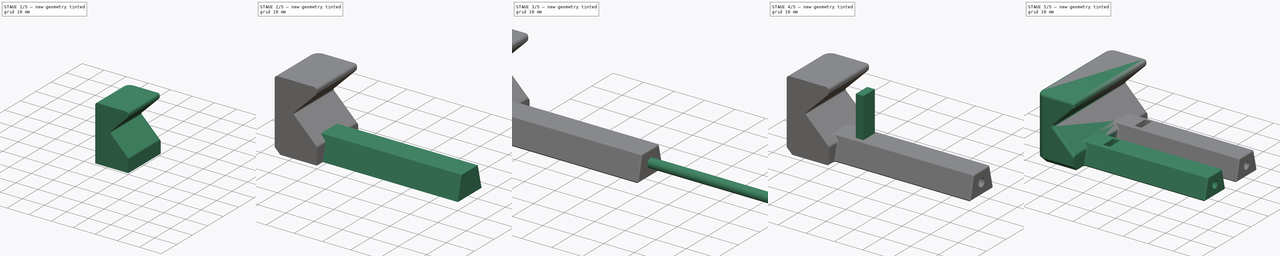
[diagram: build sequence overview — one tinted view per stage of 5, left to right]
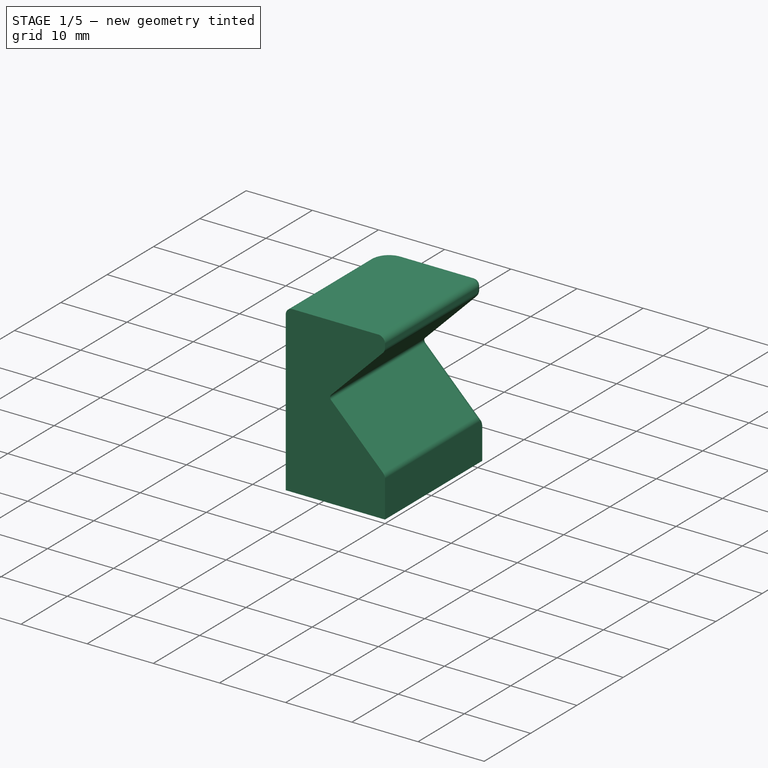
[diagram: stage 1 of 5 — iso view after this stage's code; geometry added in this stage tinted green]
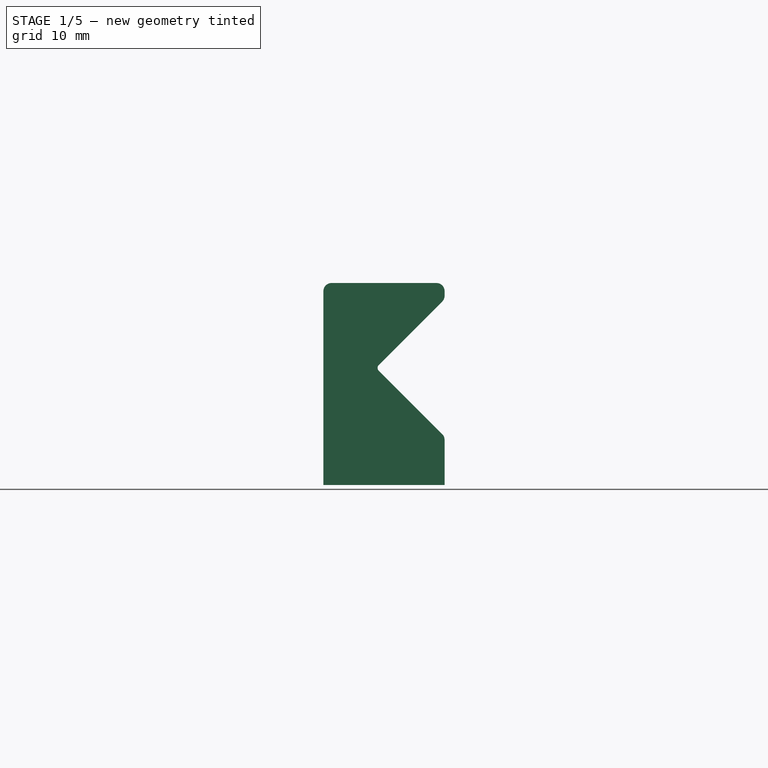
[diagram: stage 1 of 5 — front view after this stage's code; geometry added in this stage tinted green]
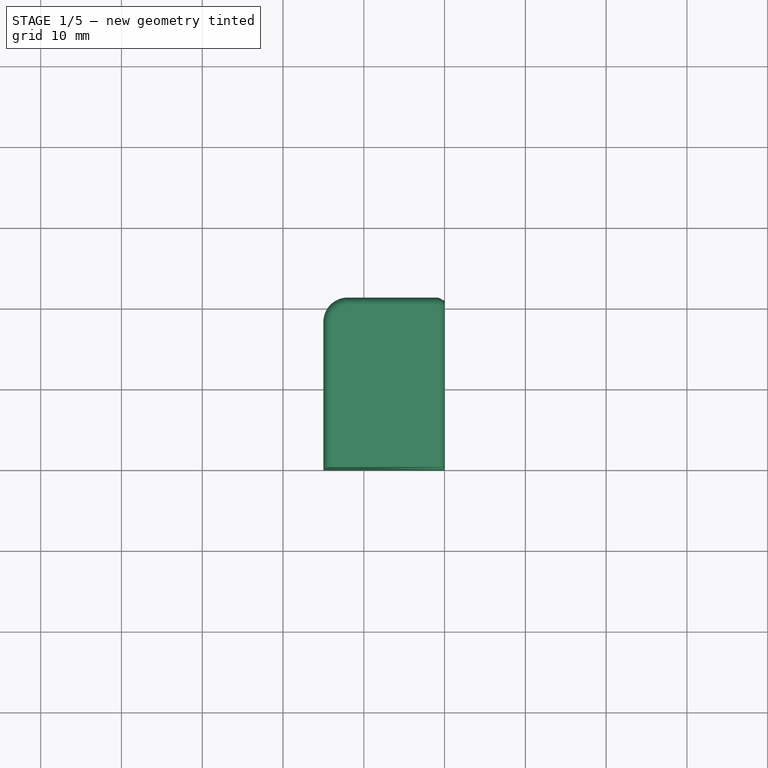
[diagram: stage 1 of 5 — top view after this stage's code; geometry added in this stage tinted green]
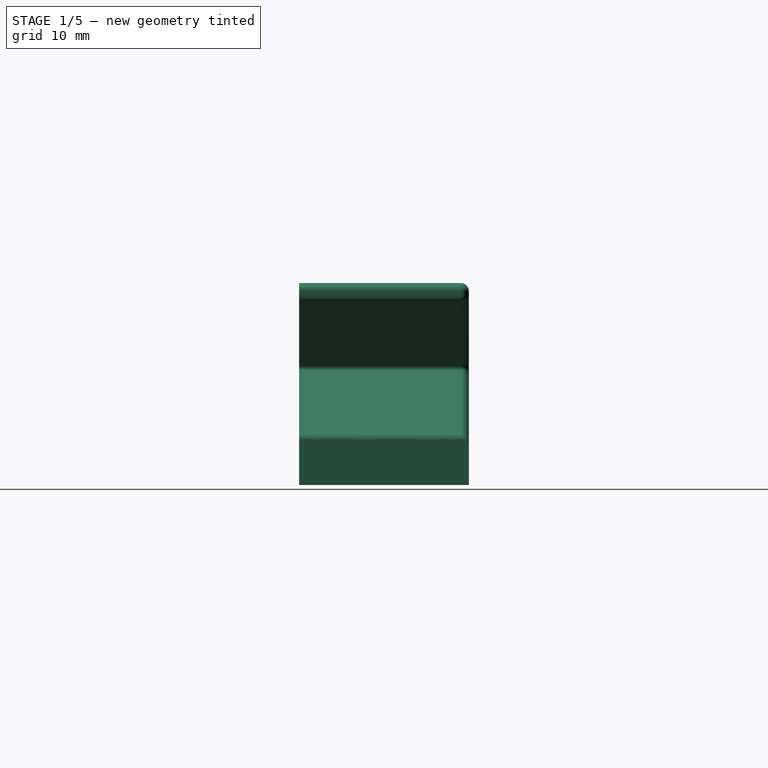
[diagram: stage 1 of 5 — right view after this stage's code; geometry added in this stage tinted green]
FCSTD DOCUMENT  (FreeCAD 0.16RUnknown)
Label: PhoneGrip
License: All rights reserved
LicenseURL: http://en.wikipedia.org/wiki/All_rights_reserved
objects: Part::Feature×4, Sketcher::SketchObject×4, App::DocumentObjectGroup×3, PartDesign::Pad×2, Part::Fillet×2, Part::Chamfer×2, Part::FeaturePython×2, Part::MultiFuse×2, Part::Cut×2, PartDesign::Pocket×1, Spreadsheet::Sheet×1, Part::Cylinder×1, Part::Extrusion×1, Part::Mirroring×1
note: 27 computed .brp shape members not serialized (recipe doc carries the construction recipe); baked Part::Feature solids carry a one-line shape summary decoded from their .brp

FEATURE [Part::Feature] Fillet001002  label="MainStructure"
  Placement = pos=(90,42,-17) rot=(0,0,1;0rad)
  shape: bbox 54.42 x 89 x 96 mm, 138 faces (baked)
FEATURE [Sketcher::SketchObject] Sketch  label="Base"
  Placement = pos=(0,0,0) rot=(0.57735,0.57735,0.57735;2.0944rad)
  sketch-geometry (4):
    g0: LineSegment StartX=0 StartY=25 StartZ=0 EndX=21 EndY=25 EndZ=0
    g1: LineSegment StartX=21 StartY=25 StartZ=0 EndX=21 EndY=0 EndZ=0
    g2: LineSegment StartX=21 StartY=0 StartZ=0 EndX=0 EndY=0 EndZ=0
    g3: LineSegment StartX=0 StartY=0 StartZ=0 EndX=0 EndY=25 EndZ=0
  constraints (11):
    c: Coincident(g0,g1)
    c: Coincident(g1,g2)
    c: Coincident(g2,g3)
    c: Coincident(g3,g0)
    c: Horizontal(g0)
    c: Horizontal(g2)
    c: Vertical(g1)
    c: Vertical(g3)
    c: DistanceX(g0,g0) = 21
    c: DistanceY(g1,g1) = 25
    c: Coincident(g2,g-1)
FEATURE [PartDesign::Pad] Pad  label="Base001"
  Length = 15
  Length2 = 100
  Placement = pos=(0,0,0) rot=(0.57735,0.57735,0.57735;2.0944rad)
  Reversed = true
  Sketch = -> Sketch
  Type = 0
FEATURE [Sketcher::SketchObject] Sketch002  label="Grip"
  Placement = pos=(0,0,0) rot=(-0.57735,-0.57735,0.57735;4.18879rad)
  Support = -> Pad [Face4]
  sketch-geometry (3):
    g0: LineSegment StartX=-14.5 StartY=-8.5 StartZ=0 EndX=-23.9379 EndY=0.937911 EndZ=0
    g1: LineSegment StartX=-23.9379 StartY=0.937911 StartZ=0 EndX=-5.06209 EndY=0.937911 EndZ=0
    g2: LineSegment StartX=-5.06209 StartY=0.937911 StartZ=0 EndX=-14.5 EndY=-8.5 EndZ=0
  constraints (8):
    c: Coincident(g0,g1)
    c: Coincident(g1,g2)
    c: Coincident(g2,g0)
    c: Horizontal(g1)
    c: Perpendicular(g2,g0)
    c: Angle(g2) = -2.35619
    c: DistanceX(g0) = -14.5
    c: DistanceY(g0) = -8.5
FEATURE [PartDesign::Pocket] Pocket  label="Grip001"
  Length = 5
  Placement = pos=(0,0,0) rot=(0.57735,0.57735,0.57735;2.0944rad)
  Sketch = -> Sketch002
  Type = 1
FEATURE [Part::Fillet] Fillet  label="ShapingFillet"
  Base = -> Pocket
  Edges = 10 edges: [Edge2 r=1,Edge3 r=1,Edge4 r=1,Edge11 r=1,Edge12 r=1,Edge13 r=1,Edge16 r=3,Edge17 r=1,Edge19 r=1,Edge21 r=0.5]
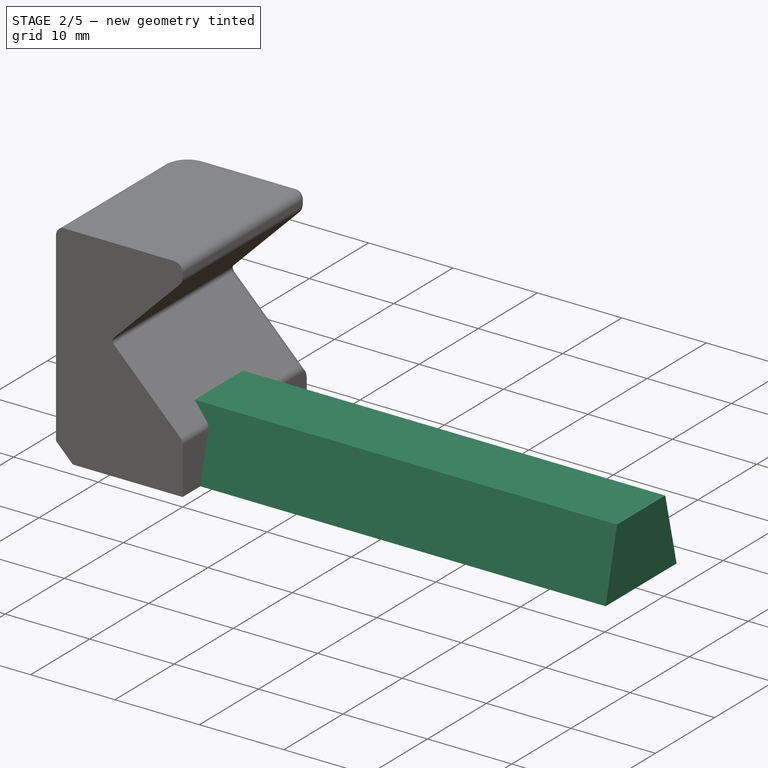
[diagram: stage 2 of 5 — iso view after this stage's code; geometry added in this stage tinted green]
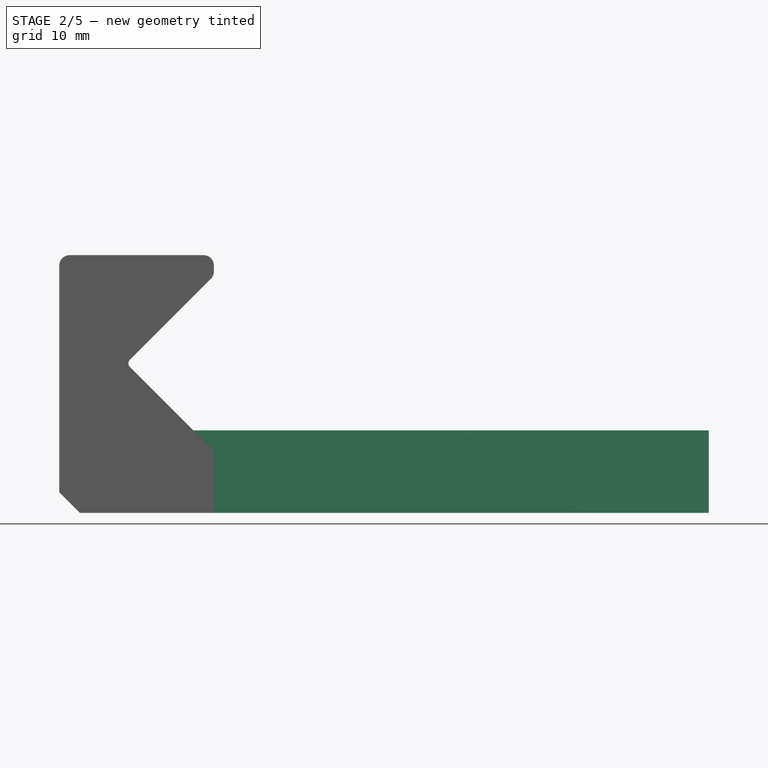
[diagram: stage 2 of 5 — front view after this stage's code; geometry added in this stage tinted green]
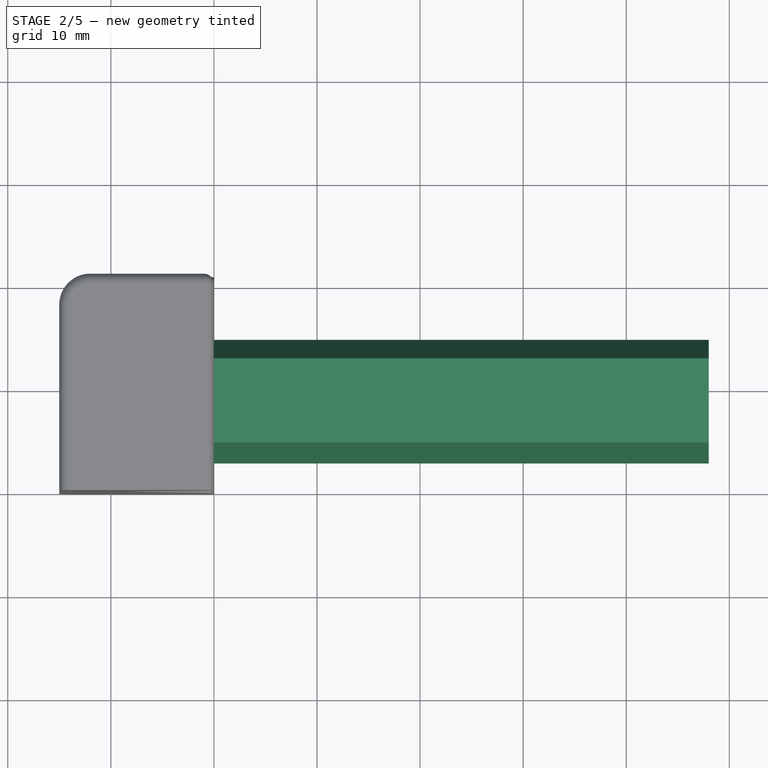
[diagram: stage 2 of 5 — top view after this stage's code; geometry added in this stage tinted green]
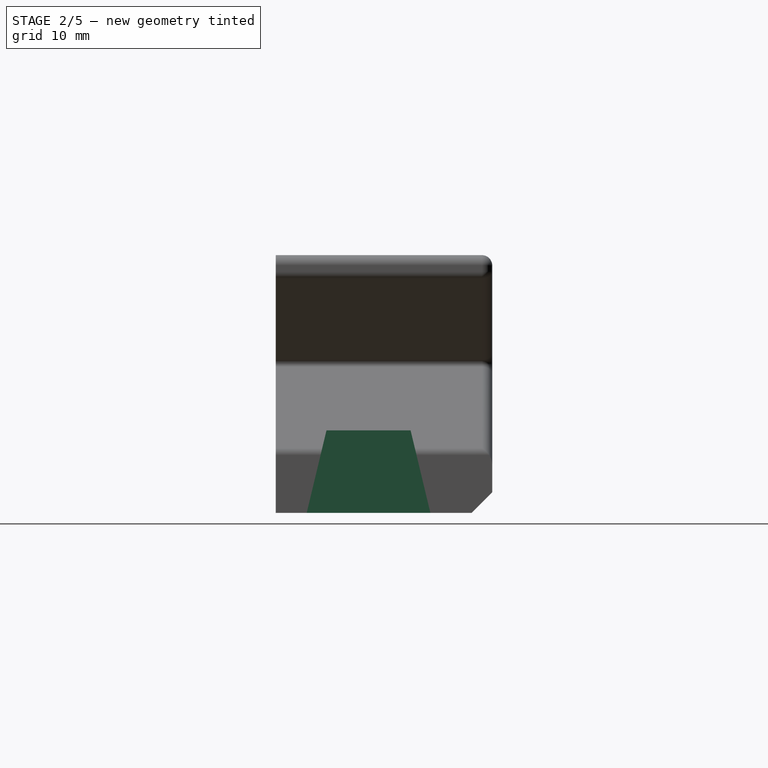
[diagram: stage 2 of 5 — right view after this stage's code; geometry added in this stage tinted green]
FEATURE [Part::Chamfer] Chamfer  label="ProfileChamfer"
  Base = -> Fillet
  Edges = 1 edges r=2: [Edge33]
FEATURE [Part::Feature] Pocket001  label="Phone"
  Placement = pos=(66,100,10) rot=(0,0,1;0rad)
  shape: bbox 70 x 145 x 9 mm, 33 faces (baked)
FEATURE [Part::Extrusion] Extrude  label="Arm001"
  Base = -> Sketch001
  Dir = (52,0,0)
  Placement = pos=(-4,0,0) rot=(0,0,1;0rad)
  Solid = true
FEATURE [Part::MultiFuse] Fusion002  label="Arm002"
  Shapes = -> [Chamfer,Extrude]
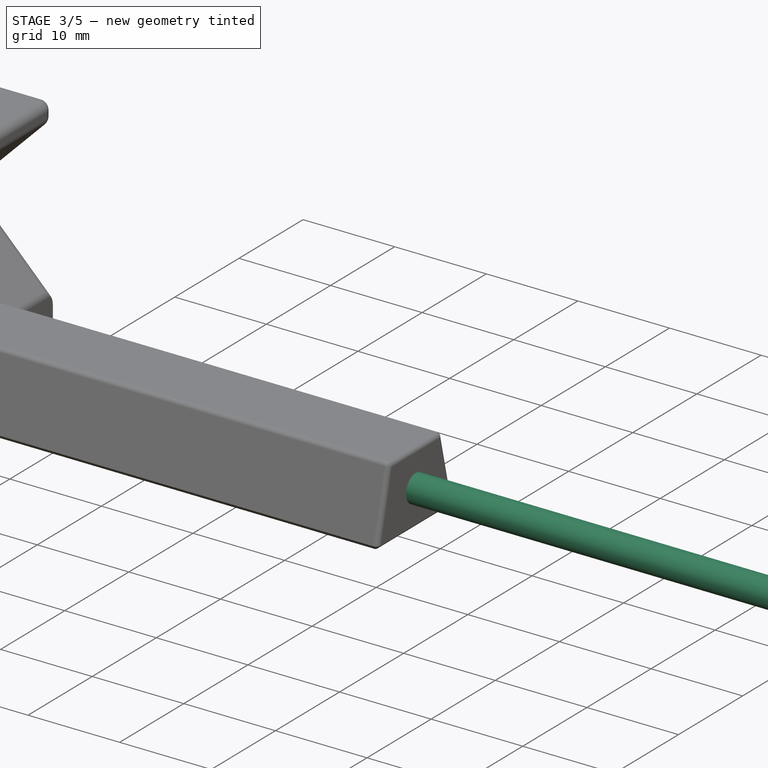
[diagram: stage 3 of 5 — iso view after this stage's code; geometry added in this stage tinted green]
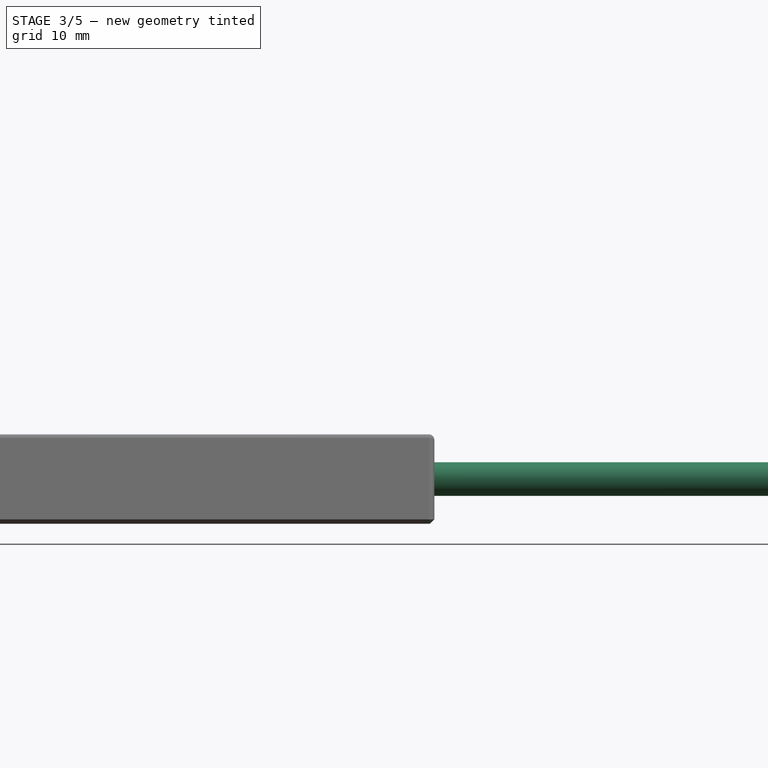
[diagram: stage 3 of 5 — front view after this stage's code; geometry added in this stage tinted green]
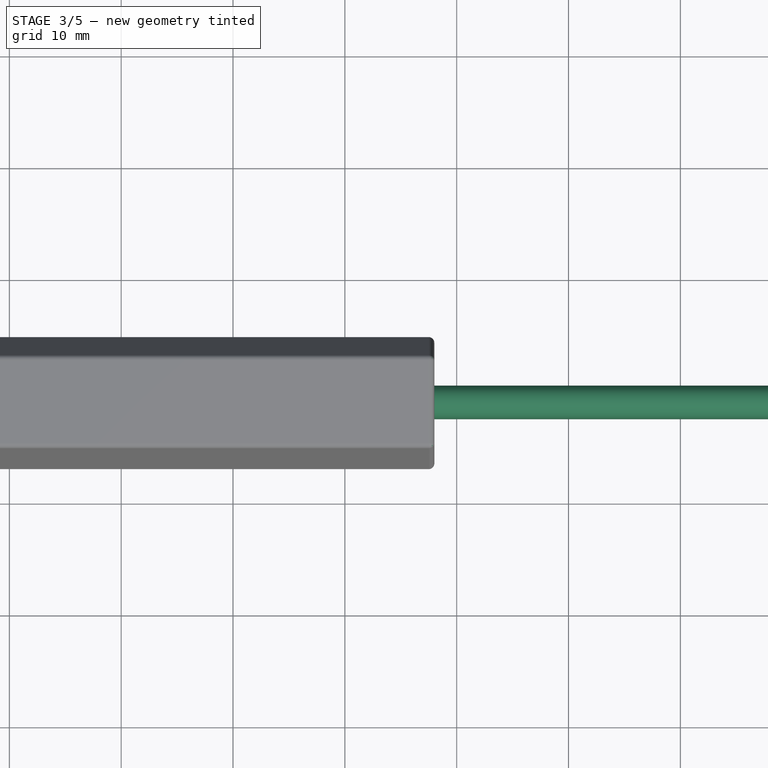
[diagram: stage 3 of 5 — top view after this stage's code; geometry added in this stage tinted green]
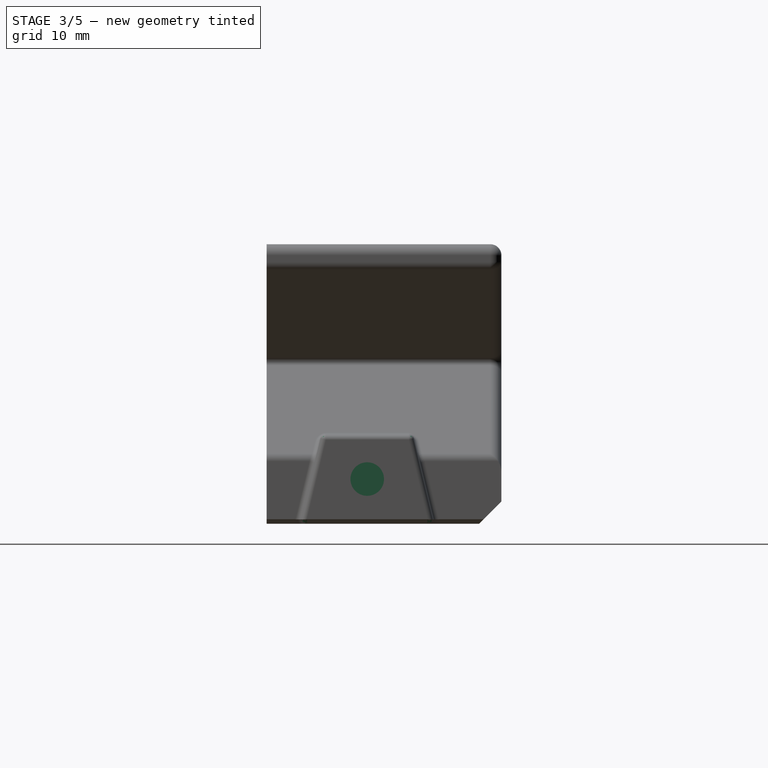
[diagram: stage 3 of 5 — right view after this stage's code; geometry added in this stage tinted green]
FEATURE [Sketcher::SketchObject] Sketch001  label="Arm"
  Placement = pos=(0,0,0) rot=(0.57735,0.57735,0.57735;2.0944rad)
  Support = -> Chamfer [Face4]
  expr: Constraints[11] = 12 - Params.B6
  sketch-geometry (5):
    g0: LineSegment StartX=4.92063 StartY=8 StartZ=0 EndX=3 EndY=0 EndZ=0
    g1: LineSegment StartX=3 StartY=0 StartZ=0 EndX=15 EndY=0 EndZ=0
    g2: LineSegment StartX=15 StartY=0 StartZ=0 EndX=13.0794 EndY=8 EndZ=0
    g3: LineSegment StartX=13.0794 StartY=8 StartZ=0 EndX=4.92063 EndY=8 EndZ=0
    g4: LineSegment [constr] StartX=9 StartY=8 StartZ=0 EndX=9 EndY=0 EndZ=0
  constraints (14):
    c: Coincident(g0,g1)
    c: Coincident(g1,g2)
    c: Coincident(g2,g3)
    c: Coincident(g3,g0)
    c: Horizontal(g3)
    c: Horizontal(g1)
    c: Symmetric(g0,g2,g4)
    c: Symmetric(g0,g1,g4)
    c: Vertical(g4)
    c: PointOnObject(g4,g-1)
    c: DistanceX(g4) = 9
    c: DistanceX(g1,g1) = 12
    c: Angle(g0,g2) = 0.471239
    c: DistanceY(g4,g4) = 8
FEATURE [Spreadsheet::Sheet] Spreadsheet  label="Params"
  cells = A1=Bolt Clearance (Radius); B1=0; A2=Smooth Rod Clearance (Radius); B2=0; A3=Bearing Clearance (Radius); B3=0; A4=Threaded Rod Clearance (Radius); B4=0; A5=GearsClearance; B5=0; A6=LaneClearance; B6=0
FEATURE [Part::Cylinder] Cylinder  label="M3ThrRod"
  Angle = 360
  Height = 100
  Placement = pos=(2,9,4) rot=(0,1,0;1.5708rad)
  Radius = 1.5
FEATURE [Part::FeaturePython] Clone001  label="Clone of M3ThrRod"  # Draft clone (typed FeaturePython)
  Objects = -> [Cylinder]
  Placement = pos=(2,9,4) rot=(0,1,0;1.5708rad)
  Scale = (1,1,1)
FEATURE [Part::Fillet] Fillet001003  label="NiceFillet"
  Base = -> Fusion002
  Edges = 8 edges r=0.5: [Edge1,Edge3,Edge4,Edge7,Edge9,Edge10,Edge13,Edge15]
FEATURE [Part::Chamfer] Chamfer001  label="ProfileChamfer001"
  Base = -> Fillet001003
  Edges = 1 edges r=0.4: [Edge8]
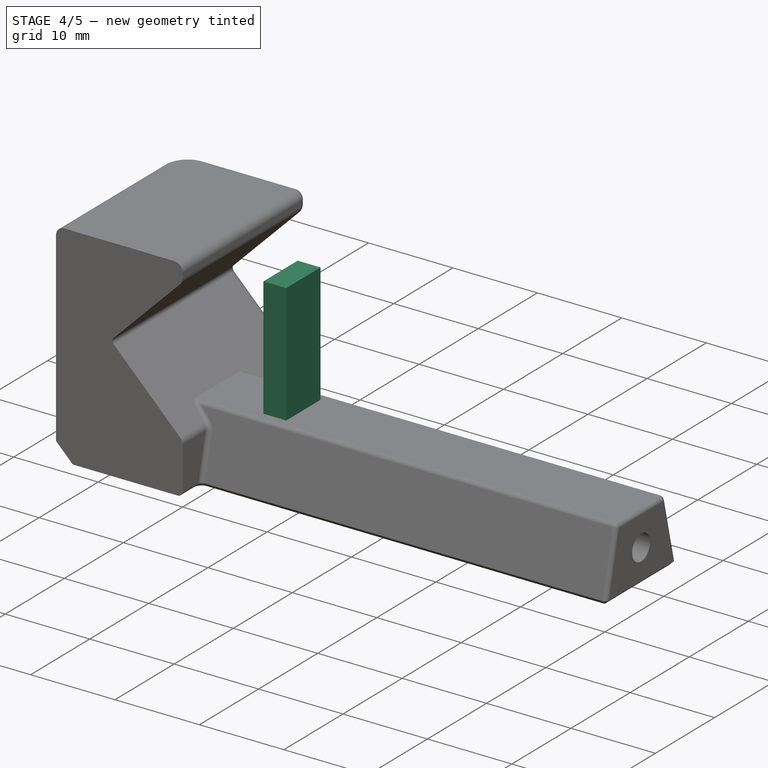
[diagram: stage 4 of 5 — iso view after this stage's code; geometry added in this stage tinted green]
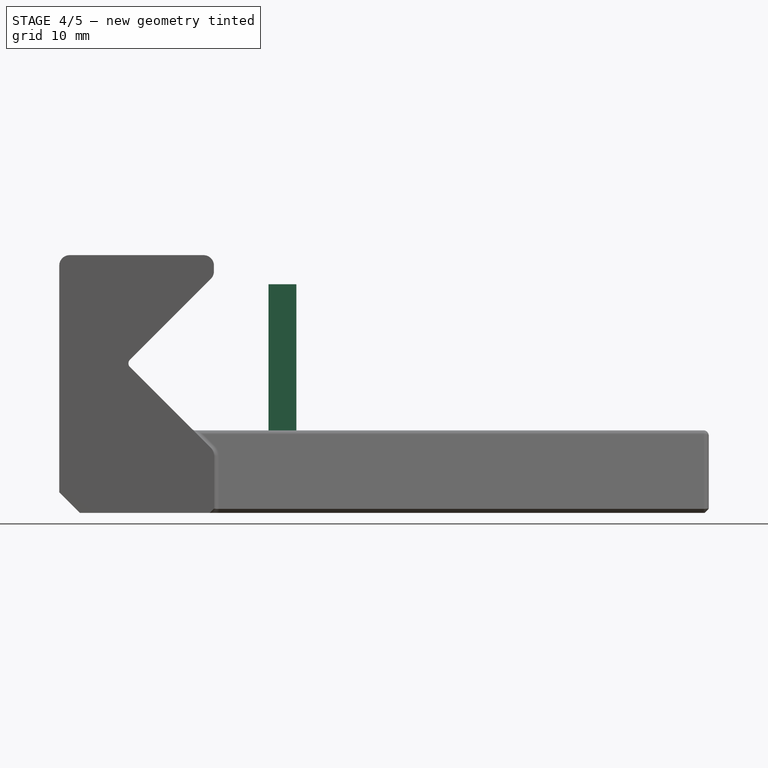
[diagram: stage 4 of 5 — front view after this stage's code; geometry added in this stage tinted green]
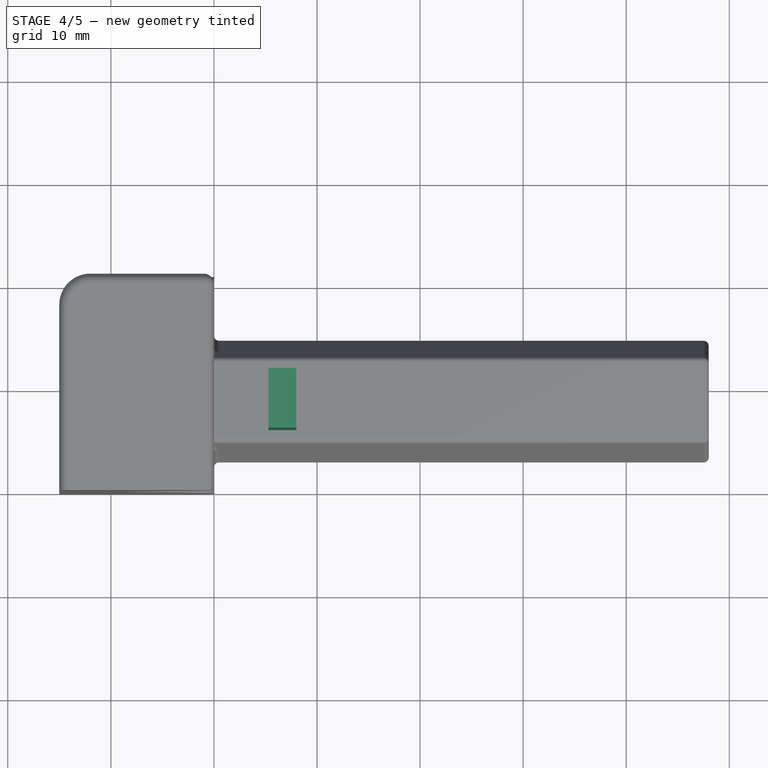
[diagram: stage 4 of 5 — top view after this stage's code; geometry added in this stage tinted green]
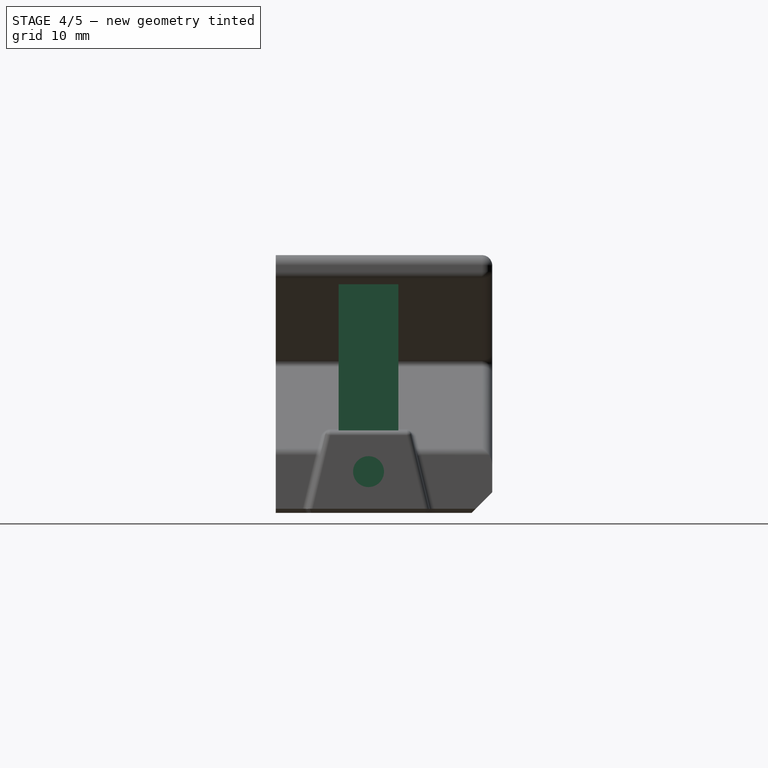
[diagram: stage 4 of 5 — right view after this stage's code; geometry added in this stage tinted green]
FEATURE [Sketcher::SketchObject] Sketch008  label="M3NutHousingSketch002"
  Placement = pos=(0,0,0) rot=(0,-1,0;1.5708rad)
  sketch-geometry (5):
    g0: LineSegment StartX=0 StartY=0 StartZ=0 EndX=1.67432 EndY=2.9 EndZ=0
    g1: LineSegment StartX=1.67432 StartY=2.9 StartZ=0 EndX=21.6743 EndY=2.9 EndZ=0
    g2: LineSegment StartX=21.6743 StartY=2.9 StartZ=0 EndX=21.6743 EndY=-2.9 EndZ=0
    g3: LineSegment StartX=21.6743 StartY=-2.9 StartZ=0 EndX=1.67432 EndY=-2.9 EndZ=0
    g4: LineSegment StartX=1.67432 StartY=-2.9 StartZ=0 EndX=0 EndY=0 EndZ=0
  constraints (14):
    c: Coincident(g-1,g0)
    c: Coincident(g0,g1)
    c: Horizontal(g1)
    c: Coincident(g1,g2)
    c: Vertical(g2)
    c: Coincident(g2,g3)
    c: Horizontal(g3)
    c: Coincident(g3,g4)
    c: Coincident(g4,g0)
    c: Equal(g3,g1)
    c: Equal(g4,g0)
    c: DistanceY(g2) = -5.8
    c: Angle(g-1,g0) = 1.0472
    c: DistanceX(g3) = -20
FEATURE [PartDesign::Pad] Pad007  label="M3NutHousingMaster"
  Length = 2.7
  Length2 = 100
  Placement = pos=(0,0,0) rot=(0,-1,0;1.5708rad)
  Sketch = -> Sketch008
  Type = 0
FEATURE [App::DocumentObjectGroup] Group001  label="Component_src"
  Group = -> [Cylinder,Pad007]
FEATURE [Part::FeaturePython] Clone  label="Clone of M3NutHousingMaster"  # Draft clone (typed FeaturePython)
  Objects = -> [Pad007]
  Placement = pos=(8,9,0.5) rot=(0,-1,0;1.5708rad)
  Scale = (1,1,1)
FEATURE [Part::Cut] Cut
  Base = -> Chamfer001
  Tool = -> Clone001
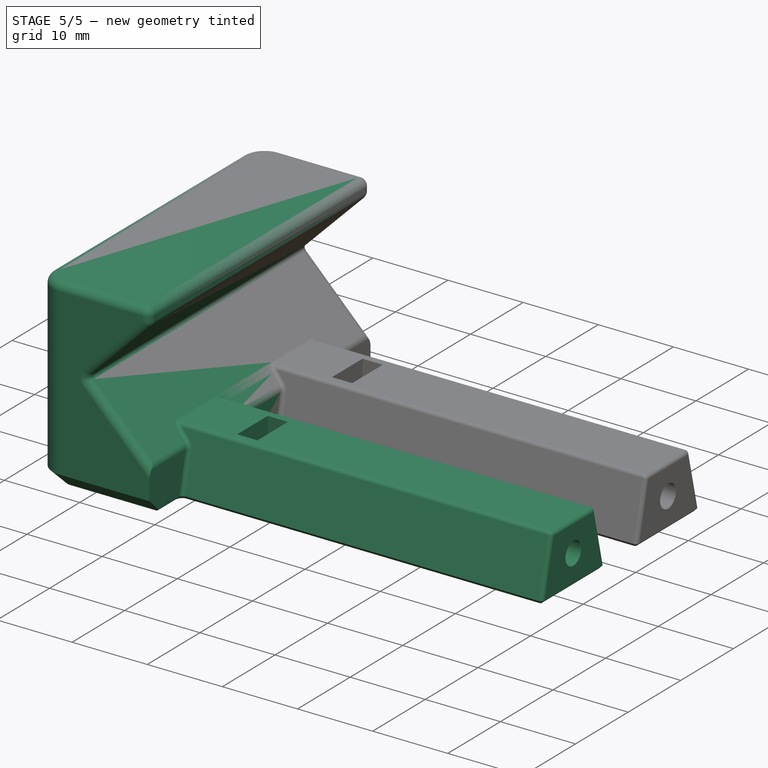
[diagram: stage 5 of 5 — iso view after this stage's code; geometry added in this stage tinted green]
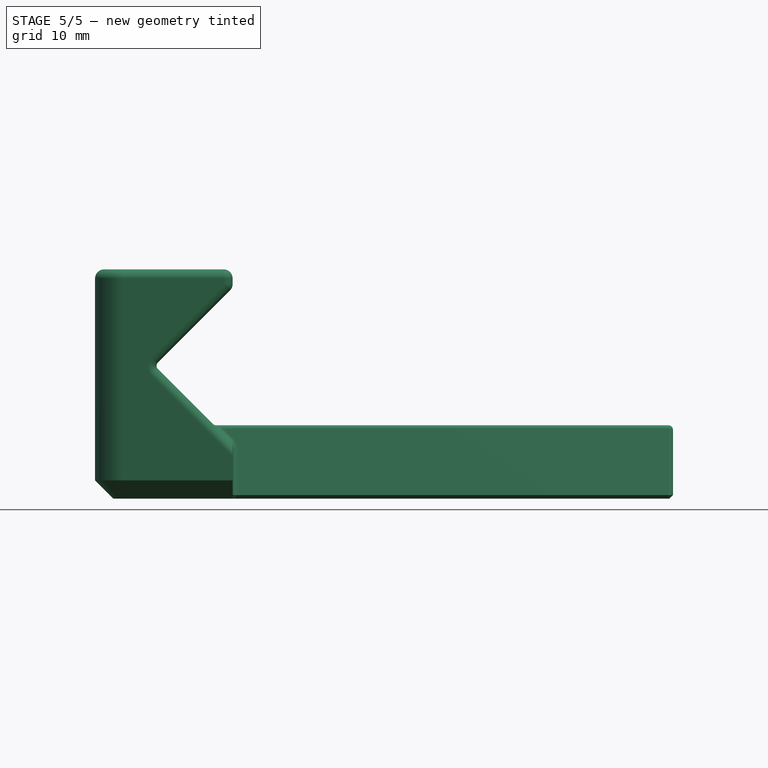
[diagram: stage 5 of 5 — front view after this stage's code; geometry added in this stage tinted green]
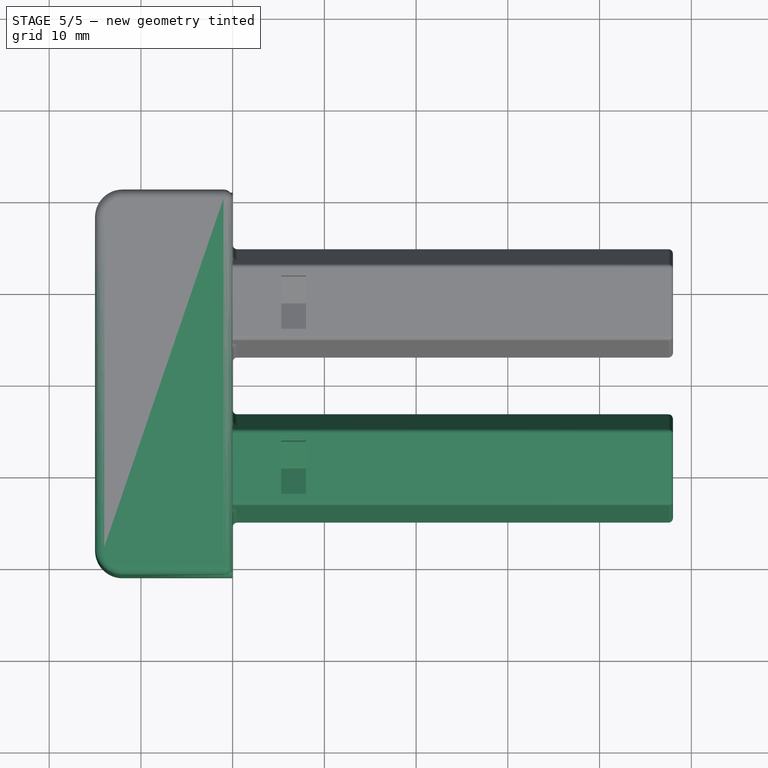
[diagram: stage 5 of 5 — top view after this stage's code; geometry added in this stage tinted green]
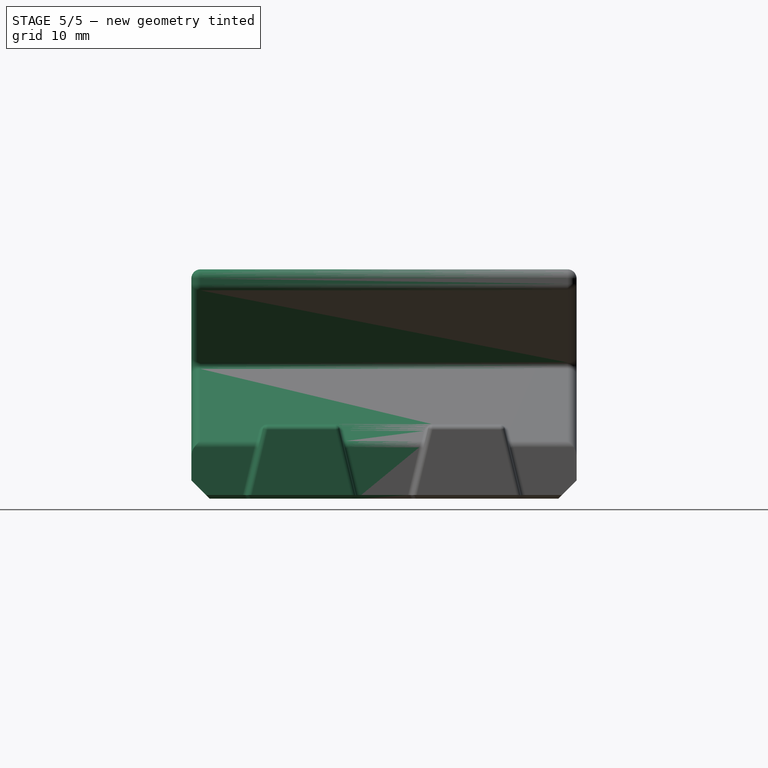
[diagram: stage 5 of 5 — right view after this stage's code; geometry added in this stage tinted green]
FEATURE [Part::Cut] Cut004006  label="ComponentsCut"
  Base = -> Cut
  Tool = -> Clone
FEATURE [Part::Mirroring] Part__Mirroring  label="ComponentsCut (Mirror #1)"
  Base = (0,0,0)
  Normal = (0,1,0)
  Source = -> Cut004006
FEATURE [Part::MultiFuse] Fusion  label="Mirroring"
  Shapes = -> [Cut004006,Part__Mirroring]
FEATURE [App::DocumentObjectGroup] Group002  label="src"
  Group = -> [Pad,Fusion,Fusion002]
FEATURE [Part::Feature] Cut004002  label="PhoneCarriage"
  Placement = pos=(80,0,-2) rot=(0,0,1;0rad)
  shape: bbox 77.83 x 59.65 x 25 mm, 114 faces (baked)
FEATURE [App::DocumentObjectGroup] Group  label="Reference"
  Group = -> [Fillet001002,Pocket001,Cut004002]
FEATURE [Part::Feature] Fusion004  label="PhoneGrip"
  shape: bbox 63.25 x 42.5 x 25.01 mm, 120 faces (baked)
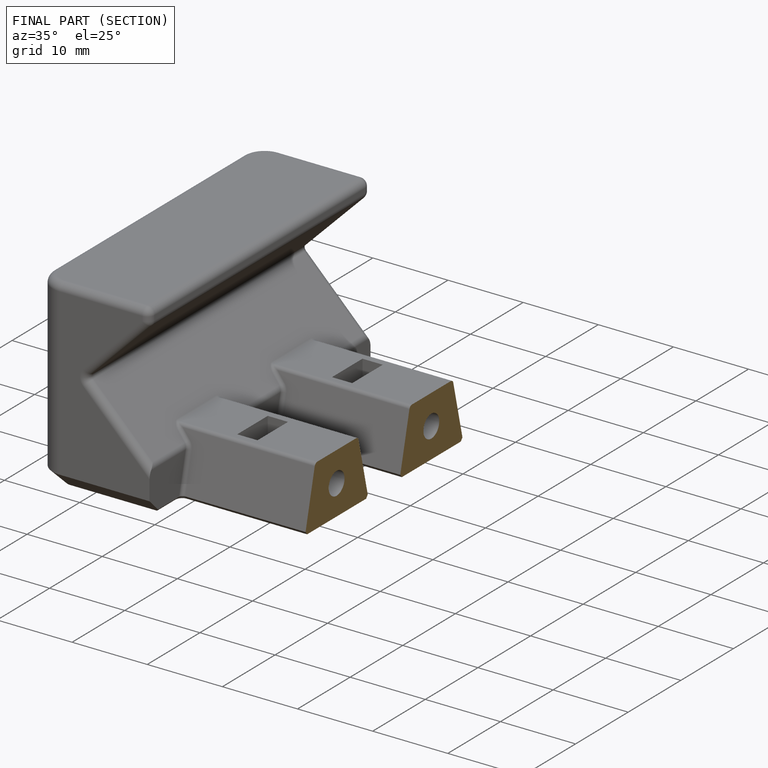
[diagram: finished part — half-section view (interior)]
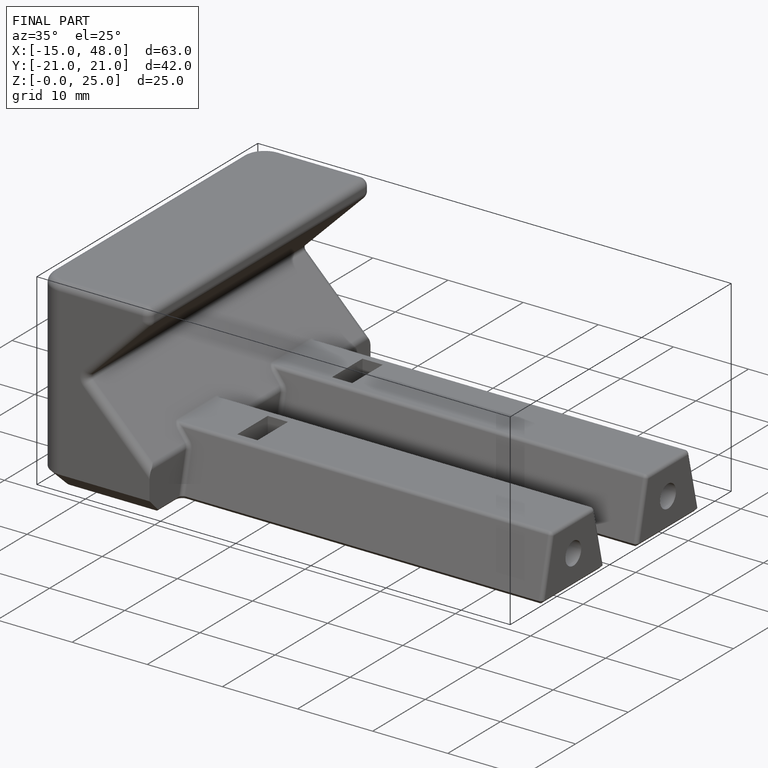
[diagram: finished part — iso view with bounding-box wireframe]
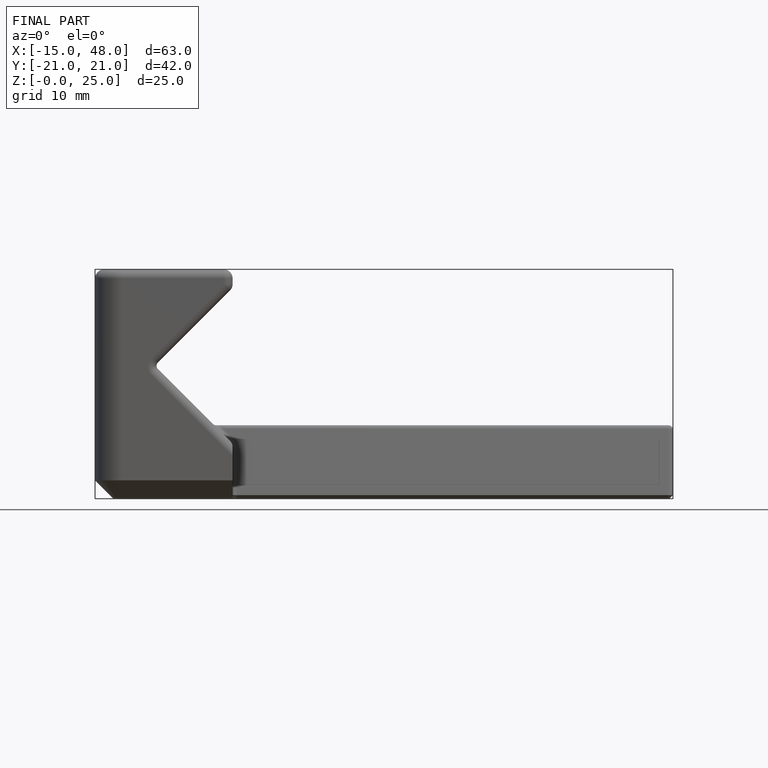
[diagram: finished part — front view with bounding-box wireframe]
